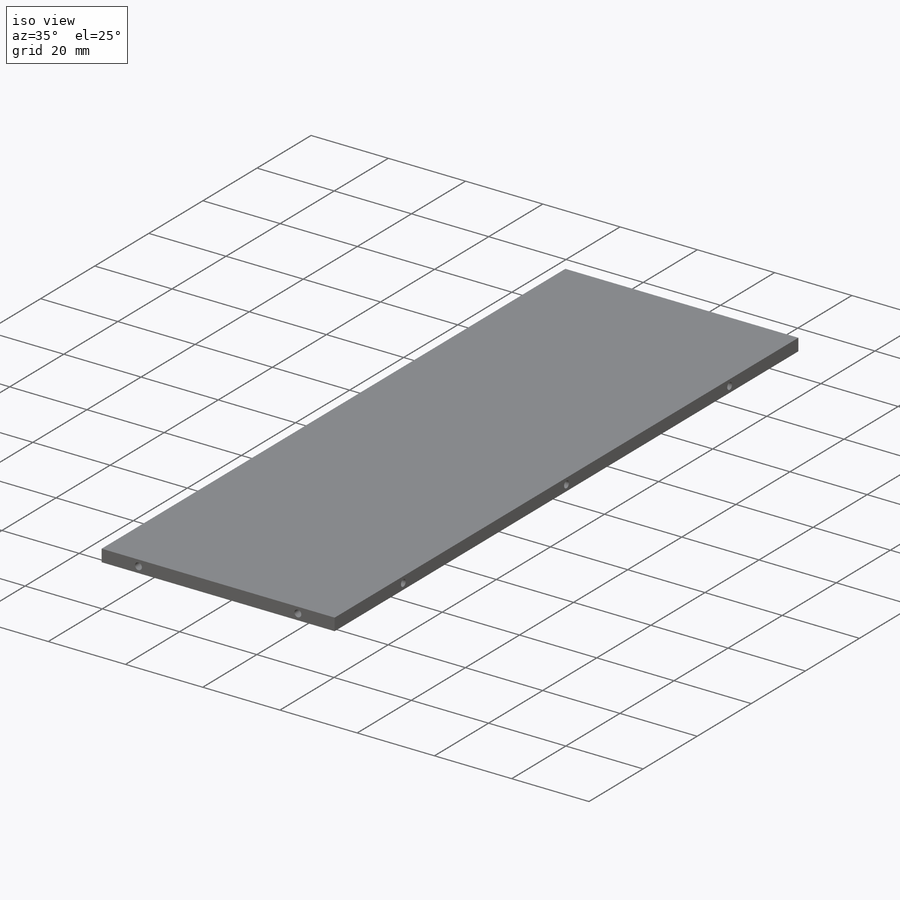
[diagram: iso view]
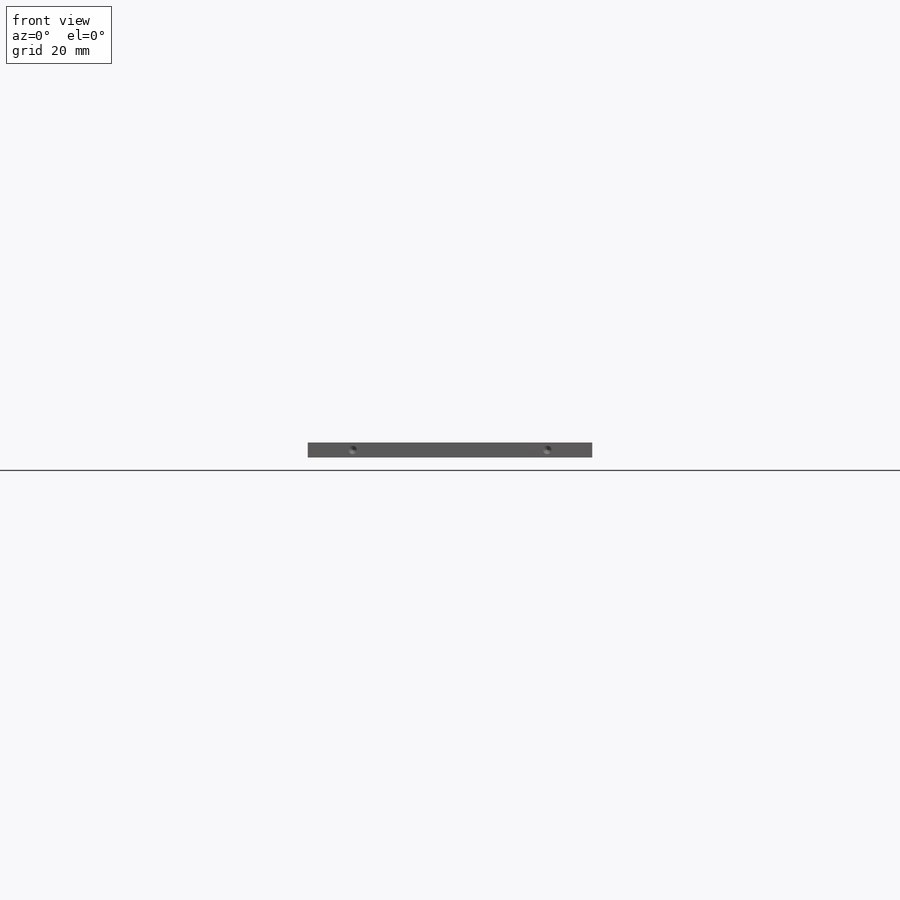
[diagram: front view]
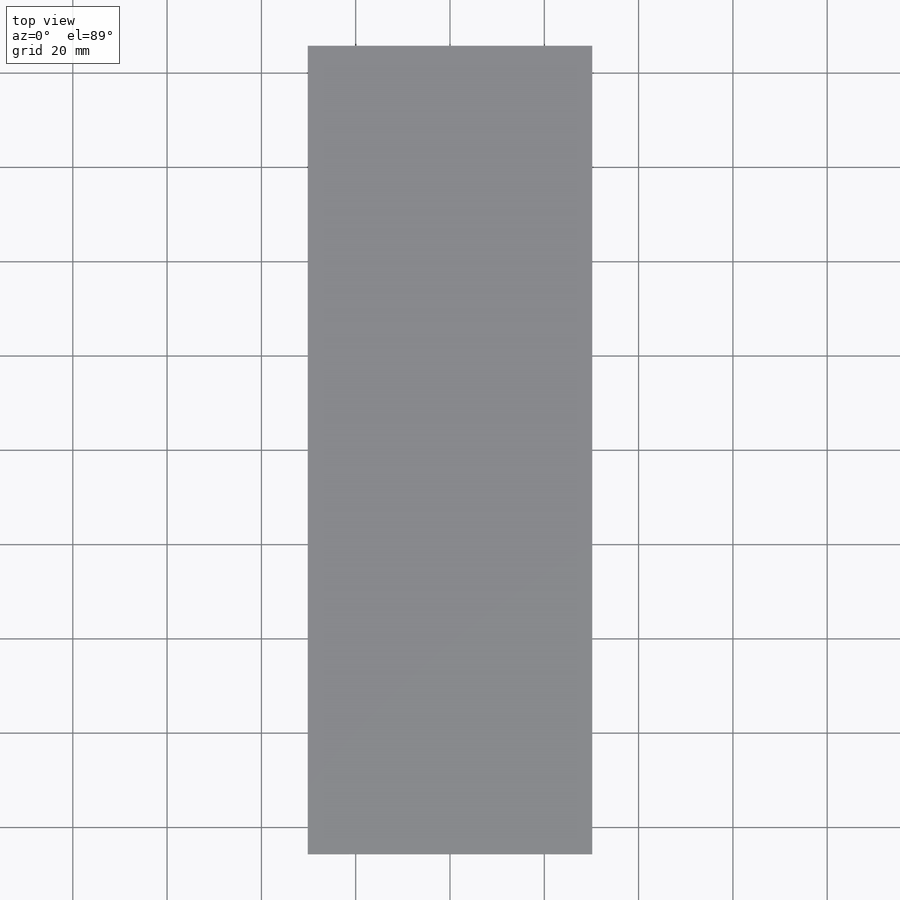
[diagram: top view]
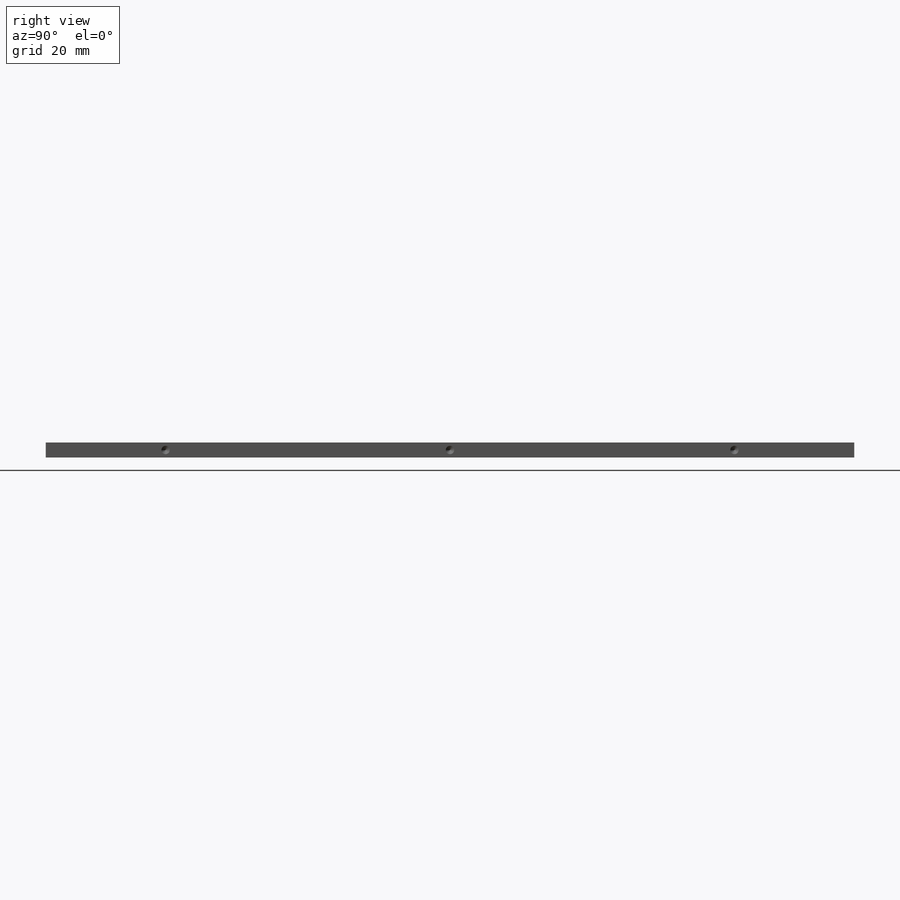
[diagram: right view]
SOLIDWORKS PART (.sldprt)
format: sldprt  version: not decoded by parser v0  size: 435,712 bytes
history: native  units: mm
features: sketch x7, hole x3, material x1, extrude x1 (+11 scaffold rows collapsed)
feature tree (23):
  scaffold x11  (default folders/planes/origin — collapsed)
  material  "Delrin"
  sketch  "Sketch1"  dims[D1=171.45mm D2=85.725mm D3=60.325mm D4=30.1625mm]
  extrude  "Extrude1"  Depth=3.175mm
  hole  "Tap Drill for #2 Tap2"  Diameter=1.778mm Depth=6.35mm
  sketch  "3DSketch1"  dims[D1=1.5875mm D2=1.5875mm D3=9.525mm D4=9.525mm]
  sketch  "Sketch2"  dims[hole-wizard template sketch: 50 standard entries collapsed; hole parameters above]
  hole  "Tap Drill for #2 Tap4"  Diameter=1.778mm Depth=6.35mm
  sketch  "3DSketch4"  dims[D1=1.5875mm D2=1.5875mm D3=9.525mm D4=9.525mm]
  sketch  "Sketch6"  dims[hole-wizard template sketch: 50 standard entries collapsed; hole parameters above]
  hole  "Tap Drill for #2 Tap5"  Diameter=1.778mm Depth=6.35mm
  sketch  "3DSketch5"  dims[D1=1.5875mm D2=1.5875mm D3=1.5875mm D4=1.5875mm D5=1.5875mm D6=1.5875mm D7=25.4mm D8=25.4mm D9=85.725mm D10=85.725mm D11=25.4mm D12=25.4mm]
  sketch  "Sketch7"  dims[hole-wizard template sketch: 50 standard entries collapsed; hole parameters above]
decode coverage: 11 of 11 modeling features carry decoded parameters
note: ~ marks probable driven/reference dimensions
note: suppression state not decoded; provenance and decode notes live in map.json
